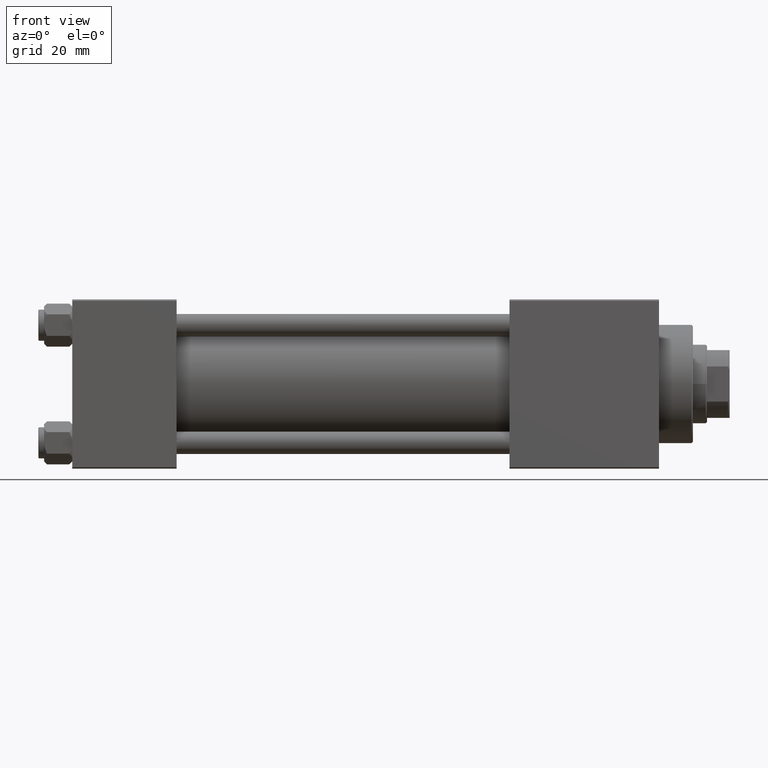
[diagram: clean part render]
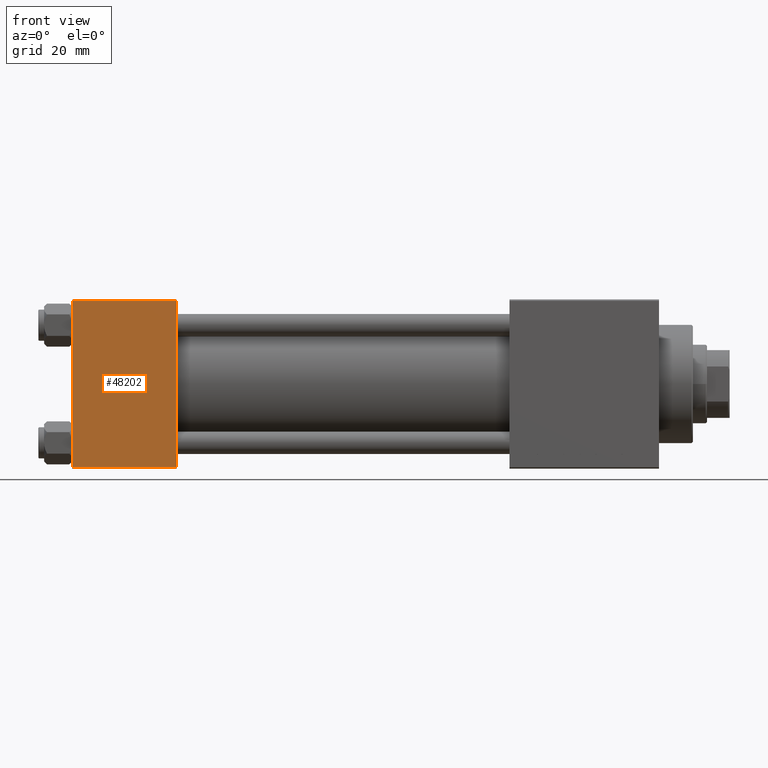
[diagram: same view with one face highlighted and labeled with its STEP entity id]
A machine part, front view. The second image highlights one B-rep face of the part: STEP entity #48202.
In plain terms, the highlighted planar face has unit normal (0, 1, 0).
Its self-contained STEP definition (entity closure, byte-faithful):
#2124 = VECTOR ( 'NONE', #39286, 1000.000000000000000 ) ;
#8404 = LINE ( 'NONE', #24294, #41598 ) ;
#8433 = ORIENTED_EDGE ( 'NONE', *, *, #38023, .T. ) ;
#9325 = CARTESIAN_POINT ( 'NONE',  ( 37.00000000000000000, -30.00000000000000000, 29.49999999999999289 ) ) ;
#11258 = LINE ( 'NONE', #12027, #36109 ) ;
#12027 = CARTESIAN_POINT ( 'NONE',  ( 37.00000000000000000, -30.00000000000000000, -29.50000000000001776 ) ) ;
#14926 = CARTESIAN_POINT ( 'NONE',  ( 0.000000000000000000, -30.00000000000000000, 29.99999999999999289 ) ) ;
#15958 = VECTOR ( 'NONE', #18574, 1000.000000000000000 ) ;
#16748 = DIRECTION ( 'NONE',  ( -1.000000000000000000, 0.000000000000000000, 0.000000000000000000 ) ) ;
#18574 = DIRECTION ( 'NONE',  ( 0.000000000000000000, 0.000000000000000000, -1.000000000000000000 ) ) ;
#18762 = ORIENTED_EDGE ( 'NONE', *, *, #29292, .T. ) ;
#19401 = EDGE_CURVE ( 'NONE', #24970, #33559, #11258, .T. ) ;
#23924 = EDGE_LOOP ( 'NONE', ( #8433, #39862, #43751, #18762 ) ) ;
#24294 = CARTESIAN_POINT ( 'NONE',  ( 37.00000000000000000, -30.00000000000000000, 29.49999999999999289 ) ) ;
#24970 = VERTEX_POINT ( 'NONE', #48546 ) ;
#25758 = CARTESIAN_POINT ( 'NONE',  ( 0.000000000000000000, -30.00000000000000000, 29.49999999999999289 ) ) ;
#25796 = DIRECTION ( 'NONE',  ( -0.000000000000000000, 1.000000000000000000, 0.000000000000000000 ) ) ;
#26564 = FACE_OUTER_BOUND ( 'NONE', #23924, .T. ) ;
#27283 = LINE ( 'NONE', #46620, #2124 ) ;
#29292 = EDGE_CURVE ( 'NONE', #47346, #41870, #8404, .T. ) ;
#29711 = PLANE ( 'NONE',  #38643 ) ;
#31145 = CARTESIAN_POINT ( 'NONE',  ( 37.00000000000000000, -30.00000000000000000, -29.50000000000001776 ) ) ;
#31319 = DIRECTION ( 'NONE',  ( 1.000000000000000000, 0.000000000000000000, 0.000000000000000000 ) ) ;
#33559 = VERTEX_POINT ( 'NONE', #31145 ) ;
#36109 = VECTOR ( 'NONE', #31319, 1000.000000000000000 ) ;
#38023 = EDGE_CURVE ( 'NONE', #41870, #24970, #46493, .T. ) ;
#38643 = AXIS2_PLACEMENT_3D ( 'NONE', #42482, #25796, #50604 ) ;
#39286 = DIRECTION ( 'NONE',  ( 0.000000000000000000, 0.000000000000000000, -1.000000000000000000 ) ) ;
#39862 = ORIENTED_EDGE ( 'NONE', *, *, #19401, .T. ) ;
#41598 = VECTOR ( 'NONE', #16748, 1000.000000000000000 ) ;
#41870 = VERTEX_POINT ( 'NONE', #25758 ) ;
#42482 = CARTESIAN_POINT ( 'NONE',  ( 37.00000000000000000, -30.00000000000000000, 29.99999999999999289 ) ) ;
#43751 = ORIENTED_EDGE ( 'NONE', *, *, #51145, .F. ) ;
#46493 = LINE ( 'NONE', #14926, #15958 ) ;
#46620 = CARTESIAN_POINT ( 'NONE',  ( 37.00000000000000000, -30.00000000000000000, 29.99999999999999289 ) ) ;
#47346 = VERTEX_POINT ( 'NONE', #9325 ) ;
#48202 = ADVANCED_FACE ( 'NONE', ( #26564 ), #29711, .F. ) ;
#48546 = CARTESIAN_POINT ( 'NONE',  ( 0.000000000000000000, -30.00000000000000000, -29.50000000000001776 ) ) ;
#50604 = DIRECTION ( 'NONE',  ( 0.000000000000000000, -0.000000000000000000, 1.000000000000000000 ) ) ;
#51145 = EDGE_CURVE ( 'NONE', #47346, #33559, #27283, .T. ) ;